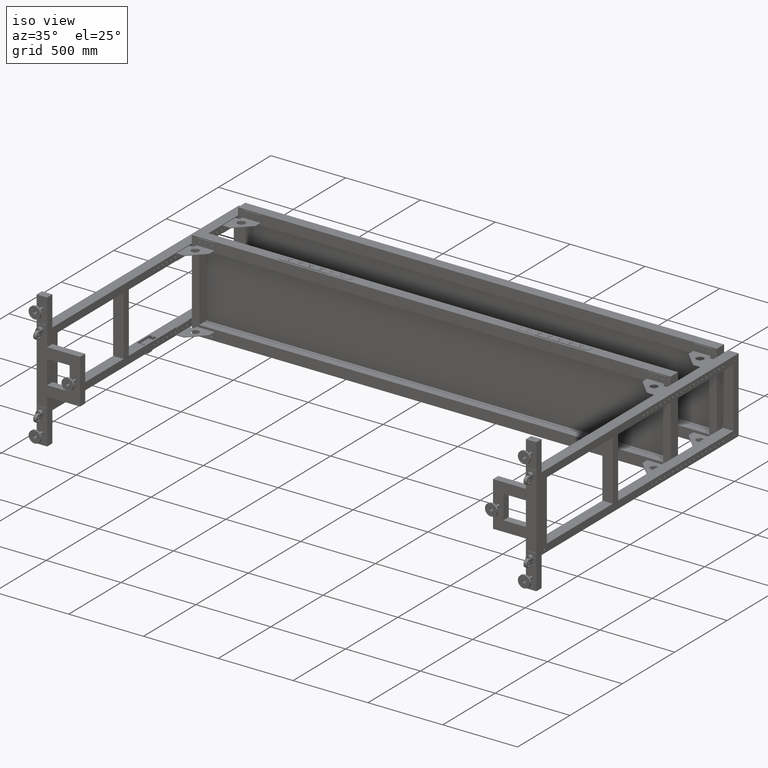
[diagram: clean part render]
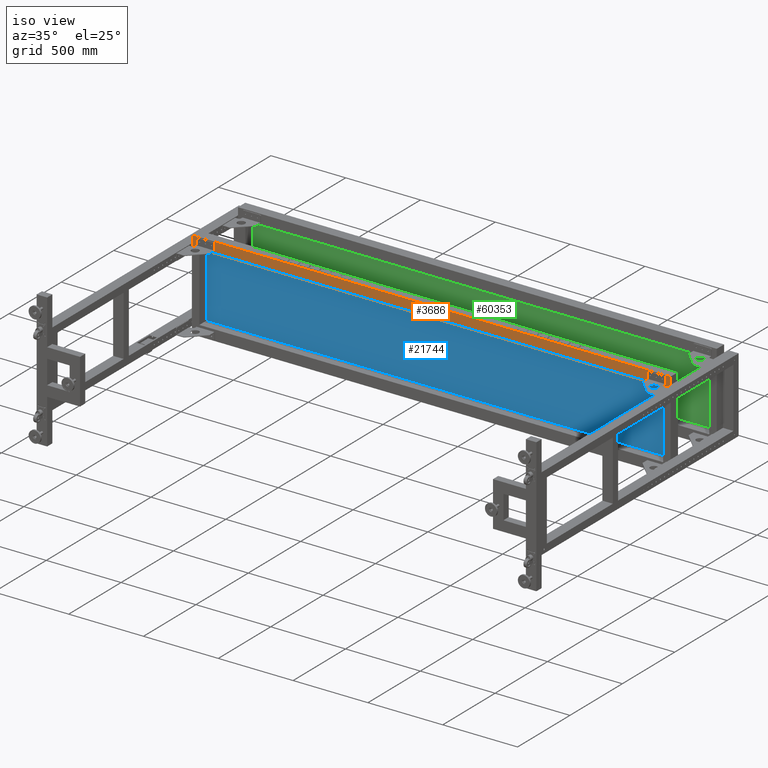
[diagram: same view with three faces highlighted in distinct colors, each labeled with its STEP entity id]
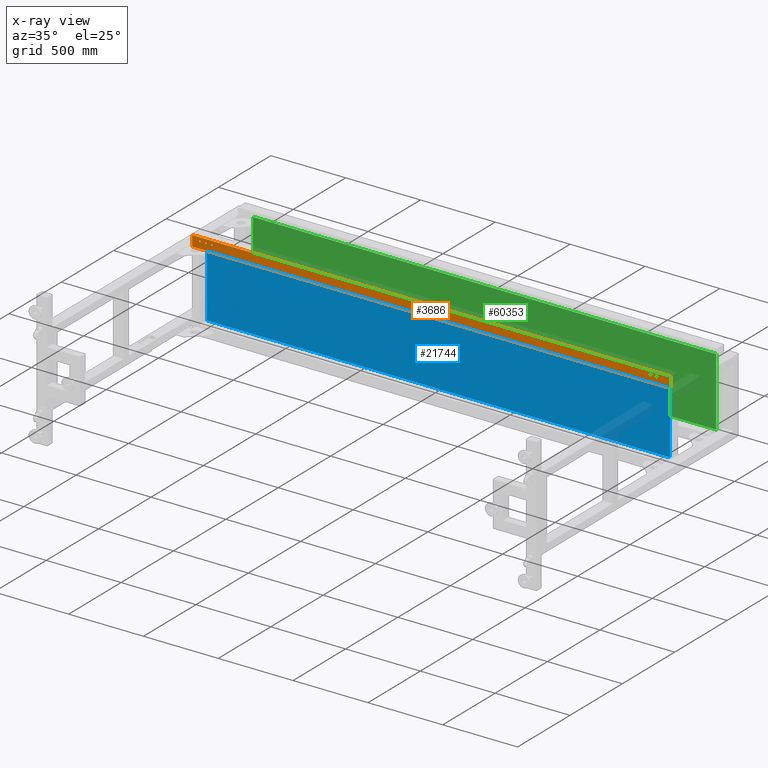
[diagram: x-ray of the same camera — body ghosted, the three highlighted faces saturated]
A machine part, iso view with three faces highlighted in distinct colors.
The next image is the same camera in x-ray (body ghosted, the three faces saturated) — at least one of them is partly hidden behind the body in this view.
Their STEP definitions:

[orange] entity #3686 — the highlighted planar face has unit normal (-0, 1, 0).
#95 = FACE_BOUND ( 'NONE', #24876, .T. ) ;
#276 = AXIS2_PLACEMENT_3D ( 'NONE', #6142, #48772, #62415 ) ;
#547 = AXIS2_PLACEMENT_3D ( 'NONE', #78821, #34955, #23705 ) ;
#605 = EDGE_LOOP ( 'NONE', ( #55276, #5519 ) ) ;
#903 = FACE_BOUND ( 'NONE', #55156, .T. ) ;
#1256 = CARTESIAN_POINT ( 'NONE',  ( 1929.827512562814718, 486.9410804020120622, 229.9999999999998295 ) ) ;
#1331 = DIRECTION ( 'NONE',  ( -4.543257172554223644E-16, 1.000000000000000000, 2.999999999999999839E-15 ) ) ;
#1480 = EDGE_LOOP ( 'NONE', ( #4521, #25644 ) ) ;
#1527 = ORIENTED_EDGE ( 'NONE', *, *, #9131, .F. ) ;
#1865 = EDGE_CURVE ( 'NONE', #72195, #21668, #41685, .T. ) ;
#2178 = DIRECTION ( 'NONE',  ( -1.000000000000000000, 0.000000000000000000, 0.000000000000000000 ) ) ;
#2678 = EDGE_CURVE ( 'NONE', #3874, #32524, #78892, .T. ) ;
#2718 = EDGE_LOOP ( 'NONE', ( #57651, #33199, #10025, #58586 ) ) ;
#3011 = CARTESIAN_POINT ( 'NONE',  ( 1878.327512562814491, 486.9410804020118917, 274.9999999999998863 ) ) ;
#3482 = ORIENTED_EDGE ( 'NONE', *, *, #49841, .F. ) ;
#3686 = ADVANCED_FACE ( 'NONE', ( #36693, #903, #95, #37882, #68870, #25418, #49962 ), #74493, .F. ) ;
#3854 = VERTEX_POINT ( 'NONE', #35812 ) ;
#3874 = VERTEX_POINT ( 'NONE', #65605 ) ;
#4521 = ORIENTED_EDGE ( 'NONE', *, *, #32341, .T. ) ;
#5519 = ORIENTED_EDGE ( 'NONE', *, *, #75735, .T. ) ;
#5559 = DIRECTION ( 'NONE',  ( -1.000000000000000000, 0.000000000000000000, 0.000000000000000000 ) ) ;
#6142 = CARTESIAN_POINT ( 'NONE',  ( -566.1724874371851683, 486.9410804020109254, 229.9999999999998295 ) ) ;
#6793 = DIRECTION ( 'NONE',  ( 0.000000000000000000, -1.000000000000000000, -2.999999999999999839E-15 ) ) ;
#6986 = AXIS2_PLACEMENT_3D ( 'NONE', #37564, #7790, #2178 ) ;
#7103 = CARTESIAN_POINT ( 'NONE',  ( -1266.172487437185964, 486.9410804020109822, 229.9999999999998295 ) ) ;
#7174 = ORIENTED_EDGE ( 'NONE', *, *, #55602, .T. ) ;
#7790 = DIRECTION ( 'NONE',  ( 0.000000000000000000, -1.000000000000000000, -2.999999999999999839E-15 ) ) ;
#7896 = DIRECTION ( 'NONE',  ( 1.000000000000000000, 0.000000000000000000, 0.000000000000000000 ) ) ;
#8809 = AXIS2_PLACEMENT_3D ( 'NONE', #62209, #61821, #7896 ) ;
#8868 = AXIS2_PLACEMENT_3D ( 'NONE', #78786, #23670, #5559 ) ;
#8999 = CARTESIAN_POINT ( 'NONE',  ( 1873.827512562814718, 486.9410804020118917, 274.9999999999998863 ) ) ;
#9131 = EDGE_CURVE ( 'NONE', #76514, #67451, #52321, .T. ) ;
#9137 = DIRECTION ( 'NONE',  ( 0.000000000000000000, -1.000000000000000000, -2.999999999999999839E-15 ) ) ;
#9636 = CARTESIAN_POINT ( 'NONE',  ( -1139.172487437185964, 486.9410804020108117, 274.9999999999998863 ) ) ;
#9677 = EDGE_LOOP ( 'NONE', ( #7174, #62165 ) ) ;
#10025 = ORIENTED_EDGE ( 'NONE', *, *, #18913, .F. ) ;
#12425 = ORIENTED_EDGE ( 'NONE', *, *, #1865, .F. ) ;
#12641 = CARTESIAN_POINT ( 'NONE',  ( 1798.327512562814945, 486.9410804020118348, 274.9999999999998863 ) ) ;
#14083 = AXIS2_PLACEMENT_3D ( 'NONE', #43799, #6793, #61122 ) ;
#16323 = AXIS2_PLACEMENT_3D ( 'NONE', #65840, #9137, #52951 ) ;
#17193 = CARTESIAN_POINT ( 'NONE',  ( -1219.172487437186192, 486.9410804020108117, 274.9999999999998863 ) ) ;
#18913 = EDGE_CURVE ( 'NONE', #3854, #51635, #61572, .T. ) ;
#21668 = VERTEX_POINT ( 'NONE', #70310 ) ;
#22142 = LINE ( 'NONE', #40260, #75183 ) ;
#22189 = ORIENTED_EDGE ( 'NONE', *, *, #24025, .F. ) ;
#22368 = EDGE_CURVE ( 'NONE', #47979, #73651, #49522, .T. ) ;
#22530 = DIRECTION ( 'NONE',  ( -4.543257172554223644E-16, 1.000000000000000000, 2.999999999999999839E-15 ) ) ;
#23197 = DIRECTION ( 'NONE',  ( -1.362977151766267009E-30, 2.999999999999999839E-15, -1.000000000000000000 ) ) ;
#23670 = DIRECTION ( 'NONE',  ( 0.000000000000000000, -1.000000000000000000, -2.999999999999999839E-15 ) ) ;
#23705 = DIRECTION ( 'NONE',  ( 1.000000000000000000, 0.000000000000000000, 0.000000000000000000 ) ) ;
#24025 = EDGE_CURVE ( 'NONE', #21668, #72195, #45719, .T. ) ;
#24772 = CARTESIAN_POINT ( 'NONE',  ( 1929.827512562814718, 486.9410804020120622, 229.9999999999998295 ) ) ;
#24876 = EDGE_LOOP ( 'NONE', ( #22189, #12425 ) ) ;
#25418 = FACE_BOUND ( 'NONE', #9677, .T. ) ;
#25644 = ORIENTED_EDGE ( 'NONE', *, *, #22368, .T. ) ;
#26130 = CIRCLE ( 'NONE', #72393, 4.499999999999948486 ) ;
#26411 = AXIS2_PLACEMENT_3D ( 'NONE', #43948, #1331, #50377 ) ;
#26795 = VERTEX_POINT ( 'NONE', #32656 ) ;
#26953 = DIRECTION ( 'NONE',  ( 0.000000000000000000, -1.000000000000000000, -2.999999999999999839E-15 ) ) ;
#28395 = VECTOR ( 'NONE', #23197, 1000.000000000000000 ) ;
#29053 = AXIS2_PLACEMENT_3D ( 'NONE', #12641, #74165, #48821 ) ;
#29531 = EDGE_CURVE ( 'NONE', #51635, #57922, #78326, .T. ) ;
#29733 = DIRECTION ( 'NONE',  ( 1.000000000000000000, 0.000000000000000000, 0.000000000000000000 ) ) ;
#30345 = CARTESIAN_POINT ( 'NONE',  ( -1130.172487437186192, 486.9410804020108117, 274.9999999999998863 ) ) ;
#30749 = CARTESIAN_POINT ( 'NONE',  ( -1179.172487437185964, 486.9410804020108117, 274.9999999999998863 ) ) ;
#31636 = DIRECTION ( 'NONE',  ( 0.000000000000000000, 2.999999999999999839E-15, -1.000000000000000000 ) ) ;
#31941 = EDGE_CURVE ( 'NONE', #67451, #76514, #70605, .T. ) ;
#32341 = EDGE_CURVE ( 'NONE', #73651, #47979, #41267, .T. ) ;
#32524 = VERTEX_POINT ( 'NONE', #67060 ) ;
#32611 = VERTEX_POINT ( 'NONE', #66682 ) ;
#32656 = CARTESIAN_POINT ( 'NONE',  ( -1266.172487437185964, 486.9410804020109822, 229.9999999999998295 ) ) ;
#33199 = ORIENTED_EDGE ( 'NONE', *, *, #29531, .F. ) ;
#34606 = ORIENTED_EDGE ( 'NONE', *, *, #31941, .F. ) ;
#34651 = VERTEX_POINT ( 'NONE', #66888 ) ;
#34955 = DIRECTION ( 'NONE',  ( -4.543257172554223644E-16, 1.000000000000000000, 2.999999999999999839E-15 ) ) ;
#35208 = CIRCLE ( 'NONE', #547, 4.499999999999948486 ) ;
#35489 = CIRCLE ( 'NONE', #29053, 4.499999999999948486 ) ;
#35812 = CARTESIAN_POINT ( 'NONE',  ( -1266.172487437185964, 486.9410804020108117, 299.9999999999998863 ) ) ;
#36169 = EDGE_CURVE ( 'NONE', #26795, #57922, #22142, .T. ) ;
#36693 = FACE_OUTER_BOUND ( 'NONE', #2718, .T. ) ;
#37564 = CARTESIAN_POINT ( 'NONE',  ( -1174.672487437186192, 486.9410804020108117, 274.9999999999998863 ) ) ;
#37765 = AXIS2_PLACEMENT_3D ( 'NONE', #65588, #22530, #29733 ) ;
#37882 = FACE_BOUND ( 'NONE', #46009, .T. ) ;
#38669 = AXIS2_PLACEMENT_3D ( 'NONE', #3011, #64176, #63346 ) ;
#38859 = LINE ( 'NONE', #7103, #56914 ) ;
#40260 = CARTESIAN_POINT ( 'NONE',  ( -566.1724874371851683, 486.9410804020109254, 229.9999999999998295 ) ) ;
#40878 = CARTESIAN_POINT ( 'NONE',  ( -1214.672487437185964, 486.9410804020108117, 274.9999999999998863 ) ) ;
#41258 = DIRECTION ( 'NONE',  ( -1.000000000000000000, 0.000000000000000000, 0.000000000000000000 ) ) ;
#41267 = CIRCLE ( 'NONE', #38669, 4.499999999999948486 ) ;
#41685 = CIRCLE ( 'NONE', #6986, 4.499999999999948486 ) ;
#42370 = CARTESIAN_POINT ( 'NONE',  ( 1929.827512562814718, 486.9410804020118348, 299.9999999999998863 ) ) ;
#43284 = VERTEX_POINT ( 'NONE', #17193 ) ;
#43520 = EDGE_CURVE ( 'NONE', #3854, #26795, #38859, .T. ) ;
#43638 = EDGE_CURVE ( 'NONE', #43284, #32611, #26130, .T. ) ;
#43799 = CARTESIAN_POINT ( 'NONE',  ( -1134.672487437185964, 486.9410804020108117, 274.9999999999998863 ) ) ;
#43948 = CARTESIAN_POINT ( 'NONE',  ( 1878.327512562814491, 486.9410804020118917, 274.9999999999998863 ) ) ;
#45719 = CIRCLE ( 'NONE', #61112, 4.499999999999948486 ) ;
#46009 = EDGE_LOOP ( 'NONE', ( #34606, #1527 ) ) ;
#46643 = CARTESIAN_POINT ( 'NONE',  ( -1174.672487437186192, 486.9410804020108117, 274.9999999999998863 ) ) ;
#47399 = CIRCLE ( 'NONE', #8868, 4.499999999999948486 ) ;
#47979 = VERTEX_POINT ( 'NONE', #54034 ) ;
#48772 = DIRECTION ( 'NONE',  ( -4.543257172554223644E-16, 1.000000000000000000, 2.999999999999999839E-15 ) ) ;
#48821 = DIRECTION ( 'NONE',  ( 1.000000000000000000, 0.000000000000000000, 0.000000000000000000 ) ) ;
#49522 = CIRCLE ( 'NONE', #26411, 4.499999999999948486 ) ;
#49841 = EDGE_CURVE ( 'NONE', #32611, #43284, #47399, .T. ) ;
#49962 = FACE_BOUND ( 'NONE', #605, .T. ) ;
#50377 = DIRECTION ( 'NONE',  ( 1.000000000000000000, 0.000000000000000000, 0.000000000000000000 ) ) ;
#51324 = VERTEX_POINT ( 'NONE', #57118 ) ;
#51635 = VERTEX_POINT ( 'NONE', #42370 ) ;
#52212 = VECTOR ( 'NONE', #72874, 1000.000000000000000 ) ;
#52321 = CIRCLE ( 'NONE', #16323, 4.499999999999948486 ) ;
#52349 = DIRECTION ( 'NONE',  ( 1.000000000000000000, 4.543257172554223644E-16, 0.000000000000000000 ) ) ;
#52951 = DIRECTION ( 'NONE',  ( -1.000000000000000000, 0.000000000000000000, 0.000000000000000000 ) ) ;
#54034 = CARTESIAN_POINT ( 'NONE',  ( 1882.827512562814718, 486.9410804020118917, 274.9999999999998863 ) ) ;
#55156 = EDGE_LOOP ( 'NONE', ( #3482, #64136 ) ) ;
#55276 = ORIENTED_EDGE ( 'NONE', *, *, #60733, .T. ) ;
#55602 = EDGE_CURVE ( 'NONE', #32524, #3874, #35208, .T. ) ;
#56914 = VECTOR ( 'NONE', #31636, 1000.000000000000000 ) ;
#57118 = CARTESIAN_POINT ( 'NONE',  ( 1802.827512562814491, 486.9410804020118348, 274.9999999999998863 ) ) ;
#57651 = ORIENTED_EDGE ( 'NONE', *, *, #36169, .T. ) ;
#57922 = VERTEX_POINT ( 'NONE', #1256 ) ;
#58586 = ORIENTED_EDGE ( 'NONE', *, *, #43520, .T. ) ;
#60733 = EDGE_CURVE ( 'NONE', #34651, #51324, #67922, .T. ) ;
#61112 = AXIS2_PLACEMENT_3D ( 'NONE', #46643, #26953, #69620 ) ;
#61122 = DIRECTION ( 'NONE',  ( -1.000000000000000000, 0.000000000000000000, 0.000000000000000000 ) ) ;
#61572 = LINE ( 'NONE', #75535, #52212 ) ;
#61821 = DIRECTION ( 'NONE',  ( -4.543257172554223644E-16, 1.000000000000000000, 2.999999999999999839E-15 ) ) ;
#62165 = ORIENTED_EDGE ( 'NONE', *, *, #2678, .T. ) ;
#62209 = CARTESIAN_POINT ( 'NONE',  ( 1798.327512562814945, 486.9410804020118348, 274.9999999999998863 ) ) ;
#62415 = DIRECTION ( 'NONE',  ( 1.000000000000000000, 4.543257172554223644E-16, 0.000000000000000000 ) ) ;
#63346 = DIRECTION ( 'NONE',  ( 1.000000000000000000, 0.000000000000000000, 0.000000000000000000 ) ) ;
#64136 = ORIENTED_EDGE ( 'NONE', *, *, #43638, .F. ) ;
#64176 = DIRECTION ( 'NONE',  ( -4.543257172554223644E-16, 1.000000000000000000, 2.999999999999999839E-15 ) ) ;
#65017 = DIRECTION ( 'NONE',  ( 0.000000000000000000, -1.000000000000000000, -2.999999999999999839E-15 ) ) ;
#65588 = CARTESIAN_POINT ( 'NONE',  ( 1838.327512562814945, 486.9410804020118917, 274.9999999999998863 ) ) ;
#65605 = CARTESIAN_POINT ( 'NONE',  ( 1842.827512562814718, 486.9410804020118917, 274.9999999999998863 ) ) ;
#65840 = CARTESIAN_POINT ( 'NONE',  ( -1134.672487437185964, 486.9410804020108117, 274.9999999999998863 ) ) ;
#66682 = CARTESIAN_POINT ( 'NONE',  ( -1210.172487437185964, 486.9410804020108117, 274.9999999999998863 ) ) ;
#66888 = CARTESIAN_POINT ( 'NONE',  ( 1793.827512562815173, 486.9410804020118348, 274.9999999999998863 ) ) ;
#67060 = CARTESIAN_POINT ( 'NONE',  ( 1833.827512562814718, 486.9410804020118917, 274.9999999999998863 ) ) ;
#67451 = VERTEX_POINT ( 'NONE', #30345 ) ;
#67922 = CIRCLE ( 'NONE', #8809, 4.499999999999948486 ) ;
#68870 = FACE_BOUND ( 'NONE', #1480, .T. ) ;
#69620 = DIRECTION ( 'NONE',  ( -1.000000000000000000, 0.000000000000000000, 0.000000000000000000 ) ) ;
#70310 = CARTESIAN_POINT ( 'NONE',  ( -1170.172487437185964, 486.9410804020108117, 274.9999999999998863 ) ) ;
#70605 = CIRCLE ( 'NONE', #14083, 4.499999999999948486 ) ;
#72195 = VERTEX_POINT ( 'NONE', #30749 ) ;
#72393 = AXIS2_PLACEMENT_3D ( 'NONE', #40878, #65017, #41258 ) ;
#72874 = DIRECTION ( 'NONE',  ( 1.000000000000000000, 4.543257172554223644E-16, 0.000000000000000000 ) ) ;
#73651 = VERTEX_POINT ( 'NONE', #8999 ) ;
#74165 = DIRECTION ( 'NONE',  ( -4.543257172554223644E-16, 1.000000000000000000, 2.999999999999999839E-15 ) ) ;
#74493 = PLANE ( 'NONE',  #276 ) ;
#75183 = VECTOR ( 'NONE', #52349, 1000.000000000000000 ) ;
#75535 = CARTESIAN_POINT ( 'NONE',  ( -566.1724874371851683, 486.9410804020107548, 299.9999999999998863 ) ) ;
#75735 = EDGE_CURVE ( 'NONE', #51324, #34651, #35489, .T. ) ;
#76514 = VERTEX_POINT ( 'NONE', #9636 ) ;
#78326 = LINE ( 'NONE', #24772, #28395 ) ;
#78786 = CARTESIAN_POINT ( 'NONE',  ( -1214.672487437185964, 486.9410804020108117, 274.9999999999998863 ) ) ;
#78821 = CARTESIAN_POINT ( 'NONE',  ( 1838.327512562814945, 486.9410804020118917, 274.9999999999998863 ) ) ;
#78892 = CIRCLE ( 'NONE', #37765, 4.499999999999948486 ) ;

[blue] entity #21744 — the highlighted planar face has unit normal (-0, 1, -0).
#90 = DIRECTION ( 'NONE',  ( 1.000000000000000000, 4.543257172554223644E-16, 0.000000000000000000 ) ) ;
#3395 = CARTESIAN_POINT ( 'NONE',  ( 1880.317512562814727, 555.4410804020135402, -228.4899999999998954 ) ) ;
#6136 = CARTESIAN_POINT ( 'NONE',  ( -516.6624874371852911, 555.4410804020124033, -228.4899999999998954 ) ) ;
#8155 = LINE ( 'NONE', #51600, #27219 ) ;
#8337 = AXIS2_PLACEMENT_3D ( 'NONE', #46932, #71495, #41299 ) ;
#8770 = LINE ( 'NONE', #65077, #27808 ) ;
#15592 = EDGE_CURVE ( 'NONE', #67959, #25365, #31423, .T. ) ;
#17073 = VECTOR ( 'NONE', #65778, 1000.000000000000000 ) ;
#21744 = ADVANCED_FACE ( 'NONE', ( #40507 ), #59378, .F. ) ;
#22231 = CARTESIAN_POINT ( 'NONE',  ( -1216.662487437185973, 555.4410804020128580, 228.4900000000081093 ) ) ;
#25365 = VERTEX_POINT ( 'NONE', #3395 ) ;
#27219 = VECTOR ( 'NONE', #57648, 1000.000000000000000 ) ;
#27808 = VECTOR ( 'NONE', #57826, 1000.000000000000000 ) ;
#28337 = CARTESIAN_POINT ( 'NONE',  ( 1880.317512562814727, 555.4410804020135402, -228.4899999999998954 ) ) ;
#29389 = ORIENTED_EDGE ( 'NONE', *, *, #34079, .T. ) ;
#31025 = CARTESIAN_POINT ( 'NONE',  ( -1216.662487437185973, 555.4410804020124033, -228.4899999999998954 ) ) ;
#31423 = LINE ( 'NONE', #6136, #64291 ) ;
#33231 = EDGE_CURVE ( 'NONE', #67959, #63599, #8155, .T. ) ;
#34079 = EDGE_CURVE ( 'NONE', #25365, #35002, #52896, .T. ) ;
#35002 = VERTEX_POINT ( 'NONE', #59935 ) ;
#37530 = EDGE_LOOP ( 'NONE', ( #52388, #29389, #59564, #48675 ) ) ;
#40507 = FACE_OUTER_BOUND ( 'NONE', #37530, .T. ) ;
#41299 = DIRECTION ( 'NONE',  ( -4.543257172554225407E-31, 1.000000000000000472E-15, 1.000000000000000000 ) ) ;
#46932 = CARTESIAN_POINT ( 'NONE',  ( 681.8275125628146043, 555.4410804020131991, 1.110223024625156540E-13 ) ) ;
#47611 = EDGE_CURVE ( 'NONE', #35002, #63599, #8770, .T. ) ;
#48675 = ORIENTED_EDGE ( 'NONE', *, *, #33231, .F. ) ;
#51600 = CARTESIAN_POINT ( 'NONE',  ( -1216.662487437185973, 555.4410804020124033, -228.4899999999998954 ) ) ;
#52388 = ORIENTED_EDGE ( 'NONE', *, *, #15592, .T. ) ;
#52896 = LINE ( 'NONE', #28337, #17073 ) ;
#57648 = DIRECTION ( 'NONE',  ( 0.000000000000000000, 1.000000000000000472E-15, 1.000000000000000000 ) ) ;
#57826 = DIRECTION ( 'NONE',  ( -1.000000000000000000, -4.543257172554223644E-16, 0.000000000000000000 ) ) ;
#59378 = PLANE ( 'NONE',  #8337 ) ;
#59564 = ORIENTED_EDGE ( 'NONE', *, *, #47611, .T. ) ;
#59935 = CARTESIAN_POINT ( 'NONE',  ( 1880.317512562814727, 555.4410804020139949, 228.4900000000081093 ) ) ;
#63599 = VERTEX_POINT ( 'NONE', #22231 ) ;
#64291 = VECTOR ( 'NONE', #90, 1000.000000000000000 ) ;
#65077 = CARTESIAN_POINT ( 'NONE',  ( 1880.317512562814727, 555.4410804020139949, 228.4900000000001228 ) ) ;
#65778 = DIRECTION ( 'NONE',  ( -4.543257172554225407E-31, 1.000000000000000472E-15, 1.000000000000000000 ) ) ;
#67959 = VERTEX_POINT ( 'NONE', #31025 ) ;
#71495 = DIRECTION ( 'NONE',  ( -4.543257172554223644E-16, 1.000000000000000000, -1.000000000000000472E-15 ) ) ;

[green] entity #60353 — the highlighted planar face has unit normal (-0, 1, 0).
#415 = CARTESIAN_POINT ( 'NONE',  ( 1880.317512562814727, 995.4410804020142223, -228.4899999999988438 ) ) ;
#878 = CARTESIAN_POINT ( 'NONE',  ( -1216.662487437185973, 995.4410804020126307, 228.4900000000091609 ) ) ;
#10008 = DIRECTION ( 'NONE',  ( 4.543257172554225407E-31, -1.000000000000000472E-15, 1.000000000000000000 ) ) ;
#10470 = VERTEX_POINT ( 'NONE', #415 ) ;
#14841 = DIRECTION ( 'NONE',  ( 4.543257172554225407E-31, -1.000000000000000472E-15, 1.000000000000000000 ) ) ;
#15253 = PLANE ( 'NONE',  #25395 ) ;
#15598 = VECTOR ( 'NONE', #10008, 1000.000000000000000 ) ;
#20138 = DIRECTION ( 'NONE',  ( 0.000000000000000000, -1.000000000000000472E-15, 1.000000000000000000 ) ) ;
#20373 = CARTESIAN_POINT ( 'NONE',  ( -1216.662487437185973, 995.4410804020130854, -228.4899999999988438 ) ) ;
#21278 = LINE ( 'NONE', #22056, #15598 ) ;
#22056 = CARTESIAN_POINT ( 'NONE',  ( 1880.317512562814727, 995.4410804020142223, -228.4899999999988438 ) ) ;
#22679 = EDGE_CURVE ( 'NONE', #68872, #41487, #43491, .T. ) ;
#25395 = AXIS2_PLACEMENT_3D ( 'NONE', #34508, #46571, #14841 ) ;
#26404 = ORIENTED_EDGE ( 'NONE', *, *, #22679, .F. ) ;
#28393 = EDGE_LOOP ( 'NONE', ( #51420, #26404, #34261, #64310 ) ) ;
#29696 = LINE ( 'NONE', #78411, #38644 ) ;
#32102 = VECTOR ( 'NONE', #32312, 1000.000000000000000 ) ;
#32312 = DIRECTION ( 'NONE',  ( -1.000000000000000000, -4.543257172554223644E-16, 0.000000000000000000 ) ) ;
#34261 = ORIENTED_EDGE ( 'NONE', *, *, #53156, .T. ) ;
#34508 = CARTESIAN_POINT ( 'NONE',  ( 681.8275125628146043, 995.4410804020134265, 1.165734175856414367E-12 ) ) ;
#37461 = VERTEX_POINT ( 'NONE', #38186 ) ;
#38186 = CARTESIAN_POINT ( 'NONE',  ( 1880.317512562814727, 995.4410804020137675, 228.4900000000091609 ) ) ;
#38644 = VECTOR ( 'NONE', #59091, 1000.000000000000000 ) ;
#39590 = LINE ( 'NONE', #39968, #32102 ) ;
#39968 = CARTESIAN_POINT ( 'NONE',  ( 1880.317512562814727, 995.4410804020137675, 228.4900000000011744 ) ) ;
#41487 = VERTEX_POINT ( 'NONE', #878 ) ;
#43491 = LINE ( 'NONE', #68042, #61176 ) ;
#46571 = DIRECTION ( 'NONE',  ( -4.543257172554223644E-16, 1.000000000000000000, 1.000000000000000472E-15 ) ) ;
#51420 = ORIENTED_EDGE ( 'NONE', *, *, #73523, .T. ) ;
#53156 = EDGE_CURVE ( 'NONE', #68872, #10470, #29696, .T. ) ;
#59091 = DIRECTION ( 'NONE',  ( 1.000000000000000000, 4.543257172554223644E-16, 0.000000000000000000 ) ) ;
#60353 = ADVANCED_FACE ( 'NONE', ( #70368 ), #15253, .F. ) ;
#61176 = VECTOR ( 'NONE', #20138, 1000.000000000000000 ) ;
#64310 = ORIENTED_EDGE ( 'NONE', *, *, #74555, .T. ) ;
#68042 = CARTESIAN_POINT ( 'NONE',  ( -1216.662487437185973, 995.4410804020130854, -228.4899999999988438 ) ) ;
#68872 = VERTEX_POINT ( 'NONE', #20373 ) ;
#70368 = FACE_OUTER_BOUND ( 'NONE', #28393, .T. ) ;
#73523 = EDGE_CURVE ( 'NONE', #37461, #41487, #39590, .T. ) ;
#74555 = EDGE_CURVE ( 'NONE', #10470, #37461, #21278, .T. ) ;
#78411 = CARTESIAN_POINT ( 'NONE',  ( -516.6624874371854048, 995.4410804020130854, -228.4899999999988438 ) ) ;